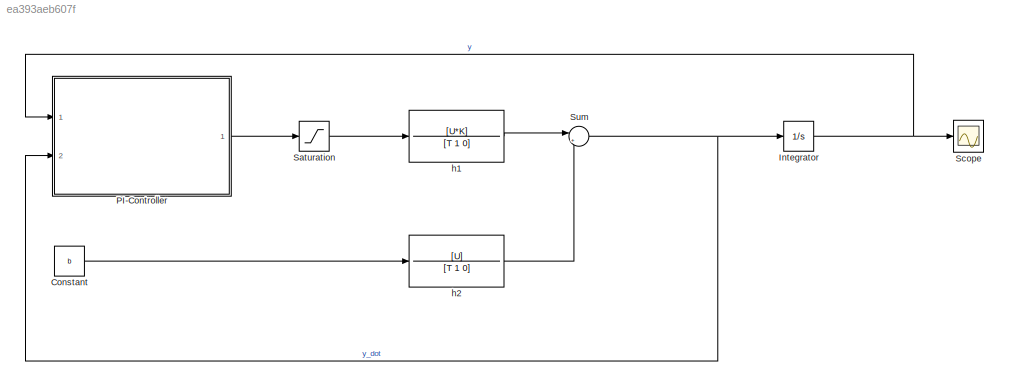
MODEL slx_ea393aeb607f
KIND model
CONFIG AbsTol = auto
CONFIG EnableMultiTasking = off
CONFIG FixedStep = auto
CONFIG MaxStep = auto
CONFIG MinStep = auto
CONFIG RelTol = 1e-3
CONFIG SampleTimeConstraint = Unconstrained
CONFIG Solver = VariableStepAuto
CONFIG SolverName = VariableStepAuto
CONFIG StartTime = 0.0
CONFIG StopTime = 100
BLOCK [Constant] Constant
  Value = b
BLOCK [Integrator] Integrator
  InitialCondition = y_0
  Ports = [1, 1]
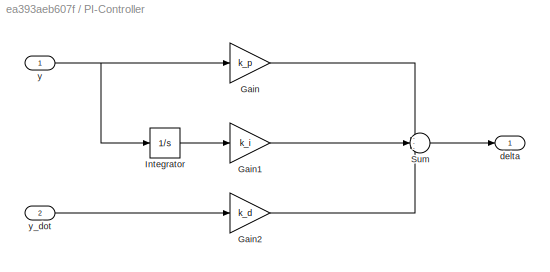
BLOCK [SubSystem] PI-Controller
  Ports = [2, 1]
  RequestExecContextInheritance = off
BLOCK [Gain] PI-Controller/Gain
  Gain = k_p
  OutDataTypeStr = Inherit: Inherit via internal rule
  ParamDataTypeStr = Inherit: Inherit via internal rule
  SaturateOnIntegerOverflow = off
BLOCK [Gain] PI-Controller/Gain1
  Gain = k_i
  OutDataTypeStr = Inherit: Inherit via internal rule
  ParamDataTypeStr = Inherit: Inherit via internal rule
  SaturateOnIntegerOverflow = off
BLOCK [Gain] PI-Controller/Gain2
  Gain = k_d
  OutDataTypeStr = Inherit: Inherit via internal rule
  ParamDataTypeStr = Inherit: Inherit via internal rule
  SaturateOnIntegerOverflow = off
BLOCK [Integrator] PI-Controller/Integrator
  Ports = [1, 1]
BLOCK [Sum] PI-Controller/Sum
  IconShape = round
  InputSameDT = off
  Inputs = ---
  OutDataTypeStr = Inherit: Inherit via internal rule
  Ports = [3, 1]
  SaturateOnIntegerOverflow = off
BLOCK [Outport] PI-Controller/delta
  IconDisplay = Port number
BLOCK [Inport] PI-Controller/y
  IconDisplay = Port number
BLOCK [Inport] PI-Controller/y_dot
  IconDisplay = Port number
  Port = 2
BLOCK [Saturate] Saturation
  InputPortMap = u0
  LowerLimit = -20
  Ports = [1, 1]
  UpperLimit = 20
BLOCK [Scope] Scope
  Floating = off
  NumInputPorts = 1
  Ports = [1]
  ScopeSpecificationString = Simulink.scopes.TimeScopeBlockCfg('CurrentConfiguration', extmgr.ConfigurationSet(extmgr.Configuration('Core','General UI',true),extmgr.Configuration('Core','Source UI',true),extmgr.Configuration('Sources','WiredSimulink',true),extmgr.Configuration('Visuals','Time Domain',true,'SerializedDisplays',{struct('MinYLimReal','-996.03219','MaxYLimReal','3114.45406','YLabelReal','','MinYLimMag',' 0.00000'...<+1339ch>
BLOCK [Sum] Sum
  IconShape = round
  InputSameDT = off
  Inputs = |++
  OutDataTypeStr = Inherit: Inherit via internal rule
  Ports = [2, 1]
  SaturateOnIntegerOverflow = off
BLOCK [TransferFcn] h1 
  Denominator = [T 1 0]
  Numerator = [U*K]
BLOCK [TransferFcn] h2
  Denominator = [T 1 0]
  Numerator = [U]
LINE Constant:1 -> h2:1
NET Integrator:1 -> PI-Controller:1, Scope:1
LINE PI-Controller/Gain1:1 -> PI-Controller/Sum:2
LINE PI-Controller/Gain2:1 -> PI-Controller/Sum:3
LINE PI-Controller/Gain:1 -> PI-Controller/Sum:1
LINE PI-Controller/Integrator:1 -> PI-Controller/Gain1:1
LINE PI-Controller/Sum:1 -> PI-Controller/delta:1
NET PI-Controller/y:1 -> PI-Controller/Gain:1, PI-Controller/Integrator:1
LINE PI-Controller/y_dot:1 -> PI-Controller/Gain2:1
LINE PI-Controller:1 -> Saturation:1
LINE Saturation:1 -> h1 :1
NET Sum:1 -> Integrator:1, PI-Controller:2
LINE h1 :1 -> Sum:1
LINE h2:1 -> Sum:2
note: NET lines group one-source signal fan-out (src -> all destinations, sorted); 1:1 wires keep LINE
